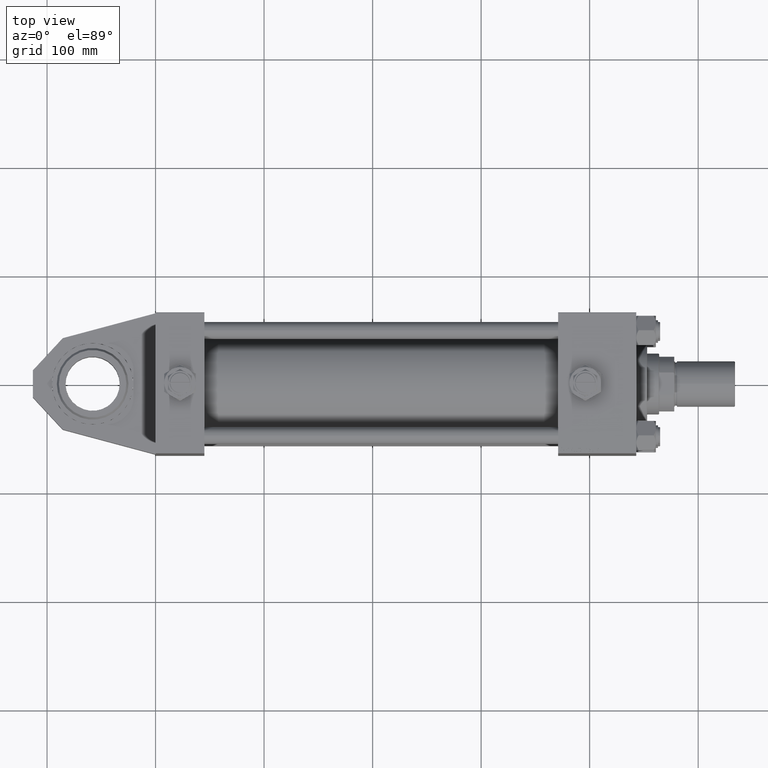
[diagram: clean part render]
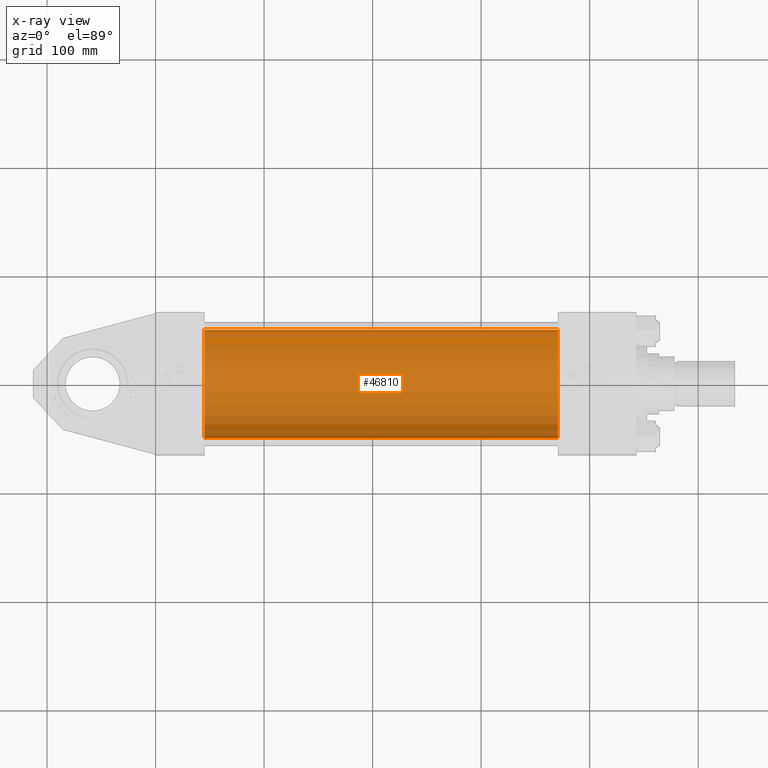
[diagram: x-ray — body ghosted, one internal face saturated and labeled with its STEP entity id]
A machine part, top view, then the same camera in x-ray: the body is ghosted and one INTERNAL B-rep face — a face not visible from any outside direction — is saturated and labeled: STEP entity #46810.
In plain terms, the highlighted cylindrical surface (partial cylindrical patch) has radius 50 mm, axis along (-1, 0, -0).
Its self-contained STEP definition (entity closure, byte-faithful):
#3603 = VERTEX_POINT ( 'NONE', #38791 ) ;
#6795 = DIRECTION ( 'NONE',  ( -1.000000000000000000, -0.000000000000000000, -0.000000000000000000 ) ) ;
#7905 = EDGE_LOOP ( 'NONE', ( #44309, #20979, #33439, #47004 ) ) ;
#8627 = DIRECTION ( 'NONE',  ( -1.000000000000000000, -0.000000000000000000, -0.000000000000000000 ) ) ;
#9810 = VERTEX_POINT ( 'NONE', #29838 ) ;
#9977 = CIRCLE ( 'NONE', #13399, 50.00000000000000000 ) ;
#11148 = DIRECTION ( 'NONE',  ( -1.000000000000000000, -0.000000000000000000, -0.000000000000000000 ) ) ;
#11730 = CARTESIAN_POINT ( 'NONE',  ( 45.00000000000000000, -2.602085213965210642E-15, 0.000000000000000000 ) ) ;
#11812 = AXIS2_PLACEMENT_3D ( 'NONE', #18698, #11148, #19225 ) ;
#13399 = AXIS2_PLACEMENT_3D ( 'NONE', #11730, #52335, #15772 ) ;
#14924 = FACE_OUTER_BOUND ( 'NONE', #7905, .T. ) ;
#15772 = DIRECTION ( 'NONE',  ( 0.000000000000000000, 0.000000000000000000, -1.000000000000000000 ) ) ;
#15787 = EDGE_CURVE ( 'NONE', #29045, #3603, #47409, .T. ) ;
#18698 = CARTESIAN_POINT ( 'NONE',  ( 371.0000000000000000, -2.602085213965210642E-15, 0.000000000000000000 ) ) ;
#19225 = DIRECTION ( 'NONE',  ( 0.000000000000000000, 0.000000000000000000, 1.000000000000000000 ) ) ;
#20551 = CARTESIAN_POINT ( 'NONE',  ( 371.0000000000000000, -2.602085213965210642E-15, 50.00000000000000000 ) ) ;
#20752 = LINE ( 'NONE', #41168, #26564 ) ;
#20979 = ORIENTED_EDGE ( 'NONE', *, *, #15787, .T. ) ;
#26564 = VECTOR ( 'NONE', #8627, 1000.000000000000000 ) ;
#27901 = DIRECTION ( 'NONE',  ( 1.000000000000000000, 0.000000000000000000, 0.000000000000000000 ) ) ;
#29045 = VERTEX_POINT ( 'NONE', #41326 ) ;
#29838 = CARTESIAN_POINT ( 'NONE',  ( 45.00000000000000000, -2.602085213965210642E-15, 50.00000000000000000 ) ) ;
#32652 = EDGE_CURVE ( 'NONE', #50433, #29045, #32911, .T. ) ;
#32911 = CIRCLE ( 'NONE', #38043, 50.00000000000000000 ) ;
#33439 = ORIENTED_EDGE ( 'NONE', *, *, #39880, .F. ) ;
#35326 = VECTOR ( 'NONE', #6795, 1000.000000000000000 ) ;
#36491 = DIRECTION ( 'NONE',  ( 0.000000000000000000, 0.000000000000000000, -1.000000000000000000 ) ) ;
#38043 = AXIS2_PLACEMENT_3D ( 'NONE', #51288, #27901, #36491 ) ;
#38791 = CARTESIAN_POINT ( 'NONE',  ( 45.00000000000000000, 3.521148781771555838E-15, -50.00000000000000000 ) ) ;
#39880 = EDGE_CURVE ( 'NONE', #9810, #3603, #9977, .T. ) ;
#41168 = CARTESIAN_POINT ( 'NONE',  ( 371.0000000000000000, -2.602085213965210642E-15, 50.00000000000000000 ) ) ;
#41326 = CARTESIAN_POINT ( 'NONE',  ( 371.0000000000000000, 3.521148781771555838E-15, -50.00000000000000000 ) ) ;
#44309 = ORIENTED_EDGE ( 'NONE', *, *, #32652, .T. ) ;
#46810 = ADVANCED_FACE ( 'NONE', ( #14924 ), #47989, .F. ) ;
#47004 = ORIENTED_EDGE ( 'NONE', *, *, #50638, .F. ) ;
#47409 = LINE ( 'NONE', #47924, #35326 ) ;
#47924 = CARTESIAN_POINT ( 'NONE',  ( 371.0000000000000000, 3.521148781771555838E-15, -50.00000000000000000 ) ) ;
#47989 = CYLINDRICAL_SURFACE ( 'NONE', #11812, 50.00000000000000000 ) ;
#50433 = VERTEX_POINT ( 'NONE', #20551 ) ;
#50638 = EDGE_CURVE ( 'NONE', #50433, #9810, #20752, .T. ) ;
#51288 = CARTESIAN_POINT ( 'NONE',  ( 371.0000000000000000, -2.602085213965210642E-15, 0.000000000000000000 ) ) ;
#52335 = DIRECTION ( 'NONE',  ( 1.000000000000000000, 0.000000000000000000, 0.000000000000000000 ) ) ;